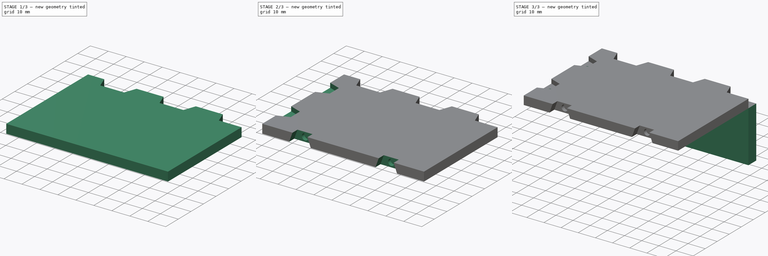
[diagram: build sequence overview — one tinted view per stage of 3, left to right]
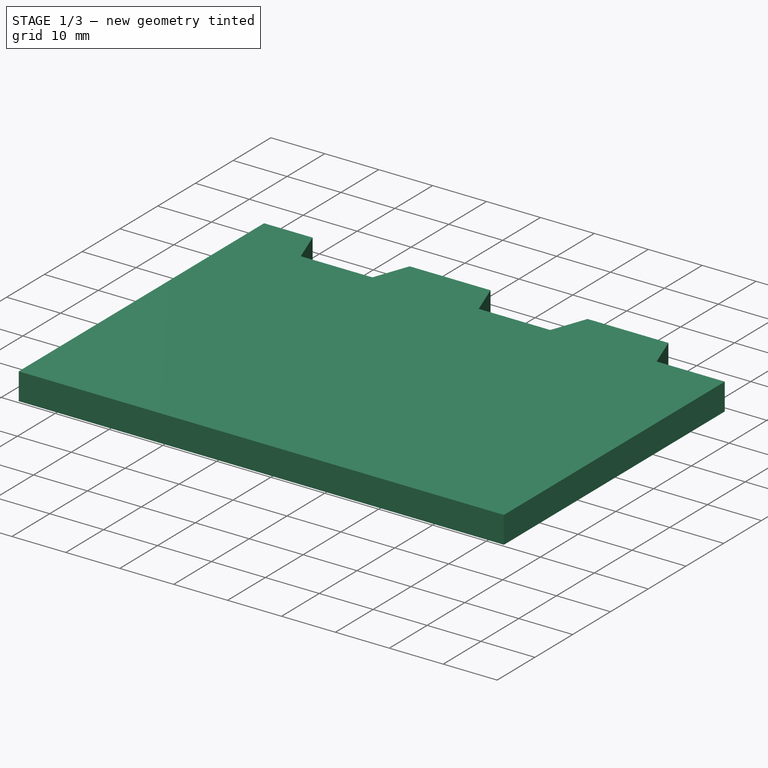
[diagram: stage 1 of 3 — iso view after this stage's code; geometry added in this stage tinted green]
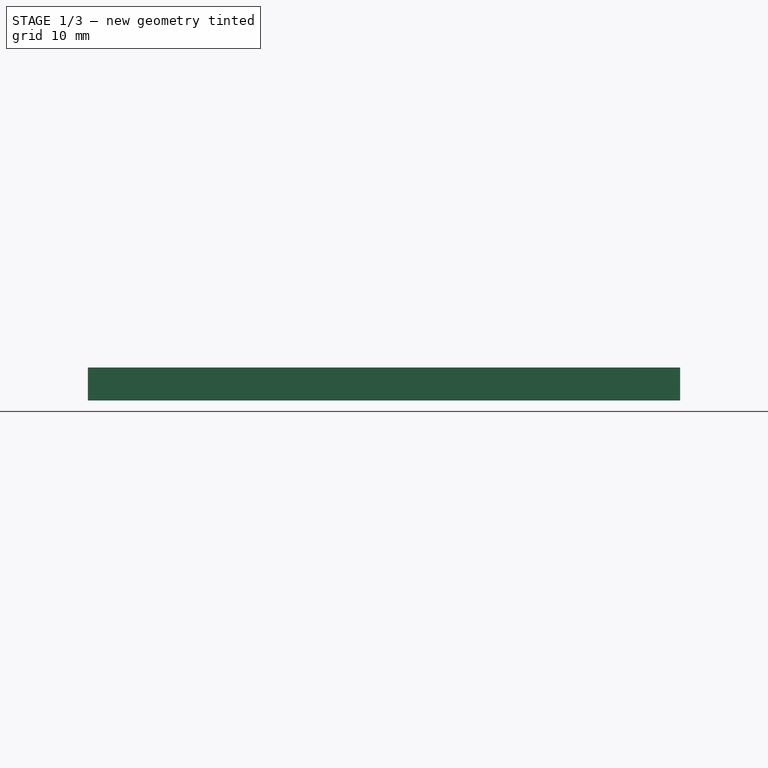
[diagram: stage 1 of 3 — front view after this stage's code; geometry added in this stage tinted green]
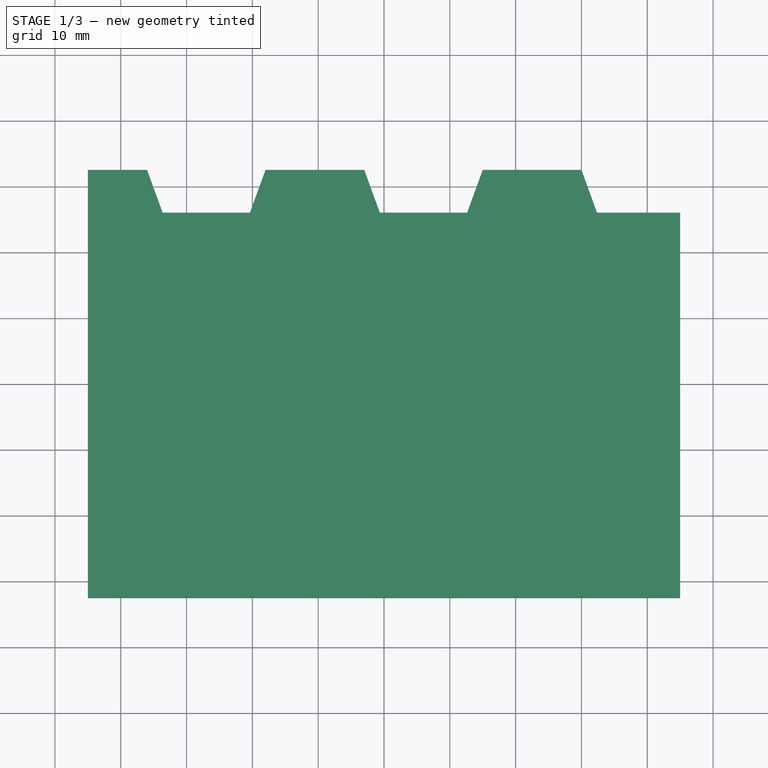
[diagram: stage 1 of 3 — top view after this stage's code; geometry added in this stage tinted green]
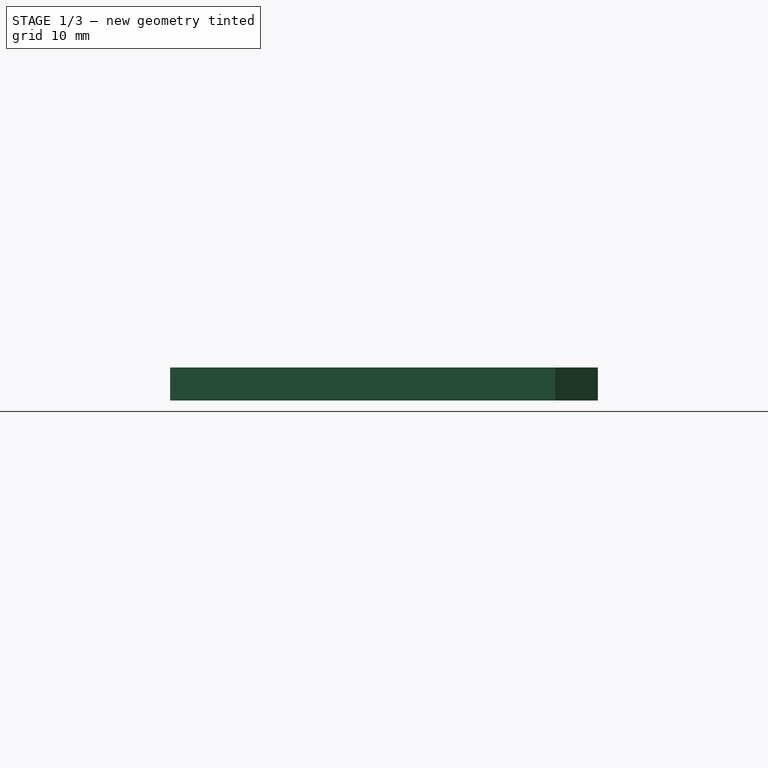
[diagram: stage 1 of 3 — right view after this stage's code; geometry added in this stage tinted green]
FCSTD DOCUMENT  (FreeCAD 0.22R38334 (Git))
Label: PiCASE001
License: All rights reserved
LicenseURL: http://en.wikipedia.org/wiki/All_rights_reserved
objects: Sketcher::SketchObject×7, PartDesign::Pocket×5, PartDesign::Body×3, PartDesign::SubShapeBinder×2, PartDesign::Pad×2, App::Part×1
note: 40 computed .brp shape members not serialized (recipe doc carries the construction recipe); baked Part::Feature solids carry a one-line shape summary decoded from their .brp

FEATURE [Sketcher::SketchObject] Sketch
  AttachmentSupport = -> [XY_Plane001]
  FullyConstrained = true
  MakeInternals = false
  MapMode = 5
  sketch-geometry (5):
    g0: LineSegment StartX=-45 StartY=-32.5 StartZ=0 EndX=45 EndY=-32.5 EndZ=0
    g1: LineSegment StartX=45 StartY=-32.5 StartZ=0 EndX=45 EndY=32.5 EndZ=0
    g2: LineSegment StartX=45 StartY=32.5 StartZ=0 EndX=-45 EndY=32.5 EndZ=0
    g3: LineSegment StartX=-45 StartY=32.5 StartZ=0 EndX=-45 EndY=-32.5 EndZ=0
    g4: GeomPoint X=0 Y=0 Z=0
  constraints (12):
    c: Coincident(g0,g1)
    c: Coincident(g1,g2)
    c: Coincident(g2,g3)
    c: Coincident(g3,g0)
    c: Horizontal(g0)
    c: Horizontal(g2)
    c: Vertical(g1)
    c: Vertical(g3)
    c: Symmetric(g2,g0,g4)
    c: Coincident(g4,g-1)
    c: DistanceX(g2,g2) = 90
    c: DistanceY(g3,g3) = 65
FEATURE [PartDesign::Body] Body
  AllowCompound = false
  Group = -> [Sketch]
  Origin = -> Origin001
FEATURE [PartDesign::SubShapeBinder] Binder
  BindCopyOnChange = 0
  BindMode = 0
  ClaimChildren = false
  Context = -> Part [Body001.Binder.]
  Fuse = false
  MakeFace = true
  OffsetFill = false
  OffsetIntersection = false
  OffsetJoinType = 0
  OffsetOpenResult = false
  PartialLoad = false
  Relative = true
  Support = -> [Body[Sketch.]]
  _Version = 2
FEATURE [PartDesign::Pad] Pad
  Direction = (0,0,1)
  Length = 5
  Length2 = 10
  Profile = -> Binder
  Reversed = true
  Suppressed = false
  Type = 0
FEATURE [PartDesign::Body] Body002
  AllowCompound = false
  Group = -> [Binder001,Sketch002,Pad001]
  Origin = -> Origin003
  Tip = -> Pad001
FEATURE [Sketcher::SketchObject] Sketch004
  AttachmentSupport = -> [Pad]
  ExternalGeometry = -> [Pad]
  FullyConstrained = true
  MakeInternals = false
  MapMode = 5
  sketch-geometry (14):
    g0: LineSegment StartX=45 StartY=32.5 StartZ=0 EndX=45 EndY=26 EndZ=0
    g1: LineSegment StartX=45 StartY=26 StartZ=0 EndX=32.3658 EndY=26 EndZ=0
    g2: LineSegment StartX=32.3658 StartY=26 StartZ=0 EndX=30 EndY=32.5 EndZ=0
    g3: LineSegment StartX=30 StartY=32.5 StartZ=0 EndX=45 EndY=32.5 EndZ=0
    g4: LineSegment StartX=15 StartY=32.5 StartZ=0 EndX=12.6342 EndY=26 EndZ=0
    g5: LineSegment StartX=12.6342 StartY=26 StartZ=0 EndX=-0.634193 EndY=26 EndZ=0
    g6: LineSegment StartX=-0.634193 StartY=26 StartZ=0 EndX=-3 EndY=32.5 EndZ=0
    g7: LineSegment StartX=-3 StartY=32.5 StartZ=0 EndX=15 EndY=32.5 EndZ=0
    g8: LineSegment StartX=-18 StartY=32.5 StartZ=0 EndX=-20.3658 EndY=26 EndZ=0
    g9: LineSegment StartX=-20.3658 StartY=26 StartZ=0 EndX=-33.6342 EndY=26 EndZ=0
    g10: LineSegment StartX=-33.6342 StartY=26 StartZ=0 EndX=-36 EndY=32.5 EndZ=0
    g11: LineSegment StartX=-36 StartY=32.5 StartZ=0 EndX=-18 EndY=32.5 EndZ=0
    g12: LineSegment StartX=-27 StartY=32.5 StartZ=0 EndX=-27 EndY=26 EndZ=0
    g13: LineSegment StartX=6 StartY=32.5 StartZ=0 EndX=6 EndY=26 EndZ=0
  constraints (39):
    c: Coincident(g-4,g0)
    c: PointOnObject(g0,g-4)
    c: Coincident(g0,g1)
    c: Horizontal(g1)
    c: Coincident(g1,g2)
    c: PointOnObject(g2,g-3)
    c: Coincident(g2,g3)
    c: Coincident(g3,g0)
    c: PointOnObject(g4,g-3)
    c: Coincident(g4,g5)
    c: Horizontal(g5)
    c: Coincident(g5,g6)
    c: PointOnObject(g6,g-3)
    c: Coincident(g6,g7)
    c: Coincident(g7,g4)
    c: PointOnObject(g8,g-3)
    c: Coincident(g8,g9)
    c: Coincident(g9,g10)
    c: PointOnObject(g10,g-3)
    c: Coincident(g10,g11)
    c: Coincident(g11,g8)
    c: Symmetric(g11,g11,g12)
    c: Symmetric(g9,g9,g12)
    c: Vertical(g12)
    c: Symmetric(g7,g7,g13)
    c: Symmetric(g5,g5,g13)
    c: Vertical(g13)
    c: Horizontal(g9)
    c: Angle(g9,g10) = 1.91986
    c: Distance(g9,g11) = 6.5
    c: DistanceX(g11,g11) = 18
    c: Equal(g11,g7)
    c: Equal(g12,g13)
    c: Equal(g13,g0)
    c: Angle(g5,g6) = 1.91986
    c: Angle(g1,g2) = 1.91986
    c: DistanceX(g3,g3) = 15
    c: DistanceX(g4,g2) = 15
    c: DistanceX(g8,g6) = 15
FEATURE [PartDesign::Pocket] Pocket
  BaseFeature = -> Pad
  Direction = (0,0,-1)
  Length = 5
  Length2 = 5
  Profile = -> Sketch004
  ReferenceAxis = -> Sketch004 [N_Axis]
  Suppressed = false
  Type = 1
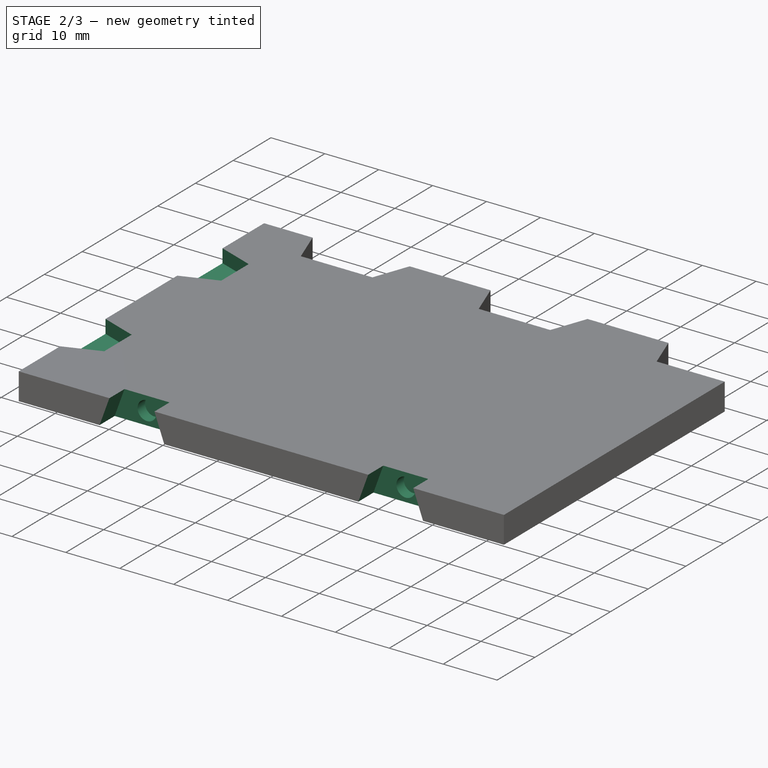
[diagram: stage 2 of 3 — iso view after this stage's code; geometry added in this stage tinted green]
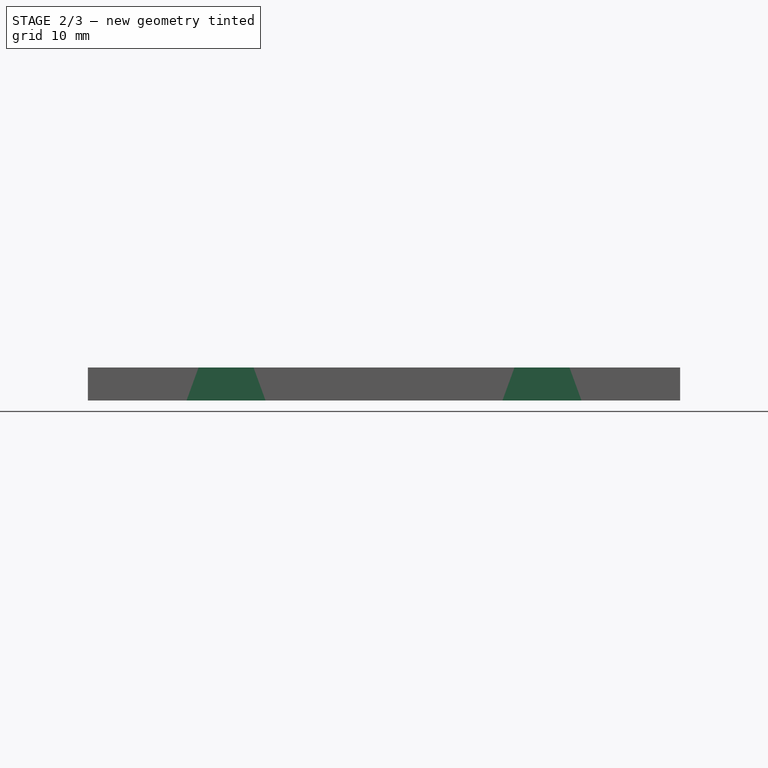
[diagram: stage 2 of 3 — front view after this stage's code; geometry added in this stage tinted green]
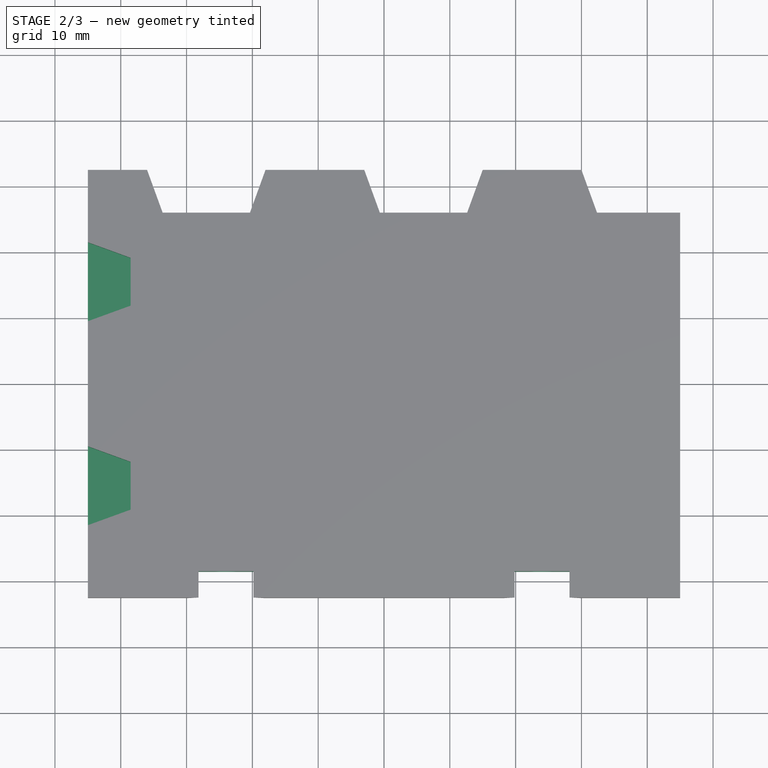
[diagram: stage 2 of 3 — top view after this stage's code; geometry added in this stage tinted green]
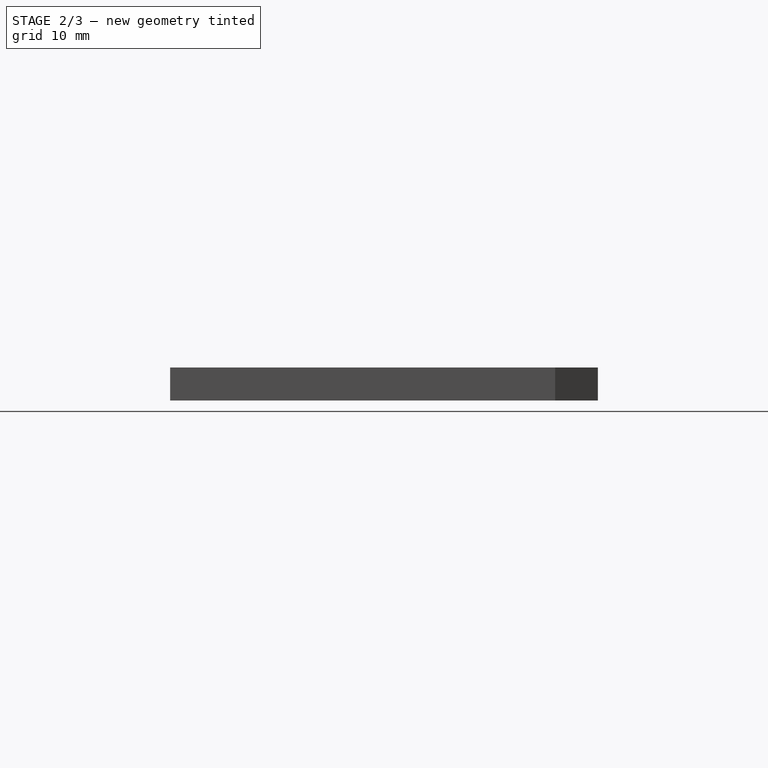
[diagram: stage 2 of 3 — right view after this stage's code; geometry added in this stage tinted green]
FEATURE [Sketcher::SketchObject] Sketch005
  AttachmentSupport = -> [Pad]
  ExternalGeometry = -> [Pad]
  FullyConstrained = true
  MakeInternals = false
  MapMode = 5
  sketch-geometry (10):
    g0: LineSegment StartX=-45 StartY=21.5 StartZ=0 EndX=-38.5 EndY=19.1342 EndZ=0
    g1: LineSegment StartX=-38.5 StartY=19.1342 StartZ=0 EndX=-38.5 EndY=11.8658 EndZ=0
    g2: LineSegment StartX=-38.5 StartY=11.8658 StartZ=0 EndX=-45 EndY=9.5 EndZ=0
    g3: LineSegment StartX=-45 StartY=9.5 StartZ=0 EndX=-45 EndY=21.5 EndZ=0
    g4: LineSegment StartX=-45 StartY=-9.5 StartZ=0 EndX=-38.5 EndY=-11.8658 EndZ=0
    g5: LineSegment StartX=-38.5 StartY=-11.8658 StartZ=0 EndX=-38.5 EndY=-19.1342 EndZ=0
    g6: LineSegment StartX=-38.5 StartY=-19.1342 StartZ=0 EndX=-45 EndY=-21.5 EndZ=0
    g7: LineSegment StartX=-45 StartY=-21.5 StartZ=0 EndX=-45 EndY=-9.5 EndZ=0
    g8: LineSegment StartX=-45 StartY=15.5 StartZ=0 EndX=-38.5 EndY=15.5 EndZ=0
    g9: LineSegment StartX=-38.5 StartY=-15.5 StartZ=0 EndX=-45 EndY=-15.5 EndZ=0
  constraints (27):
    c: Coincident(g0,g1)
    c: Vertical(g1)
    c: Coincident(g1,g2)
    c: Coincident(g2,g3)
    c: Coincident(g3,g0)
    c: Coincident(g4,g5)
    c: Vertical(g5)
    c: Coincident(g5,g6)
    c: Coincident(g6,g7)
    c: Coincident(g7,g4)
    c: Symmetric(g3,g3,g8)
    c: Horizontal(g8)
    c: Symmetric(g1,g1,g8)
    c: Angle(g0,g1) = 1.91986
    c: DistanceY(g3,g3) = 12
    c: Symmetric(g7,g7,g9)
    c: Equal(g9,g8)
    c: Equal(g3,g7)
    c: Angle(g4,g5) = 1.91986
    c: Horizontal(g9)
    c: Symmetric(g5,g5,g9)
    c: DistanceX(g8,g8) = 6.5
    c: PointOnObject(g4,g-4)
    c: PointOnObject(g6,g-4)
    c: PointOnObject(g2,g-4)
    c: DistanceY(g8,g-4) = 17
    c: Symmetric(g8,g9,g-1)
FEATURE [PartDesign::Pocket] Pocket001
  BaseFeature = -> Pocket
  Direction = (0,0,-1)
  Length = 2.5
  Length2 = 5
  Profile = -> Sketch005
  ReferenceAxis = -> Sketch005 [N_Axis]
  Suppressed = false
  Type = 0
FEATURE [Sketcher::SketchObject] Sketch006
  AttachmentSupport = -> [Pad]
  ExternalGeometry = -> [Pad]
  FullyConstrained = true
  MakeInternals = false
  MapMode = 5
  Placement = pos=(0,-32.5,0) rot=(1,0,0;1.5708rad)
  sketch-geometry (10):
    g0: LineSegment StartX=-30 StartY=-5 StartZ=0 EndX=-28.1801 EndY=0 EndZ=0
    g1: LineSegment StartX=-28.1801 StartY=0 StartZ=0 EndX=-19.8199 EndY=0 EndZ=0
    g2: LineSegment StartX=-19.8199 StartY=0 StartZ=0 EndX=-18 EndY=-5 EndZ=0
    g3: LineSegment StartX=-18 StartY=-5 StartZ=0 EndX=-30 EndY=-5 EndZ=0
    g4: LineSegment StartX=-24 StartY=0 StartZ=0 EndX=-24 EndY=-5 EndZ=0
    g5: LineSegment StartX=30 StartY=-5 StartZ=0 EndX=28.1801 EndY=0 EndZ=0
    g6: LineSegment StartX=28.1801 StartY=0 StartZ=0 EndX=19.8199 EndY=0 EndZ=0
    g7: LineSegment StartX=19.8199 StartY=0 StartZ=0 EndX=18 EndY=-5 EndZ=0
    g8: LineSegment StartX=18 StartY=-5 StartZ=0 EndX=30 EndY=-5 EndZ=0
    g9: LineSegment StartX=24 StartY=0 StartZ=0 EndX=24 EndY=-5 EndZ=0
  constraints (28):
    c: PointOnObject(g0,g-4)
    c: PointOnObject(g0,g-3)
    c: Coincident(g0,g1)
    c: PointOnObject(g1,g-3)
    c: Coincident(g1,g2)
    c: PointOnObject(g2,g-4)
    c: Coincident(g2,g3)
    c: Coincident(g3,g0)
    c: Angle(g0,g1) = 1.91986
    c: Symmetric(g1,g1,g4)
    c: Vertical(g4)
    c: Symmetric(g3,g3,g4)
    c: DistanceX(g3,g3) = 12
    c: DistanceX(g-4,g0) = 15
    c: Coincident(g5,g6)
    c: Coincident(g6,g7)
    c: Coincident(g7,g8)
    c: Coincident(g8,g5)
    c: Angle(g5,g6) = -1.91986
    c: Symmetric(g6,g6,g9)
    c: Vertical(g9)
    c: Symmetric(g8,g8,g9)
    c: DistanceX(g8,g8) = 12
    c: DistanceX(g5,g-4) = 15
    c: DistanceY(g9,g9) = 5
    c: PointOnObject(g5,g-3)
    c: PointOnObject(g5,g-4)
    c: PointOnObject(g7,g-4)
FEATURE [PartDesign::Pocket] Pocket002
  BaseFeature = -> Pocket001
  Direction = (0,1,-2e-16)
  Length = 4
  Length2 = 5
  Profile = -> Sketch006
  ReferenceAxis = -> Sketch006 [N_Axis]
  Suppressed = false
  Type = 0
FEATURE [Sketcher::SketchObject] Sketch007
  AttachmentSupport = -> [Pad]
  ExternalGeometry = -> [Pad]
  FullyConstrained = true
  MakeInternals = false
  MapMode = 5
  Placement = pos=(0,-32.5,0) rot=(1,0,0;1.5708rad)
  sketch-geometry (3):
    g0: Circle CenterX=-24 CenterY=-2.5 CenterZ=0 NormalX=0 NormalY=0 NormalZ=1 AngleXU=0 Radius=1.75
    g1: Circle CenterX=24 CenterY=-2.5 CenterZ=0 NormalX=0 NormalY=0 NormalZ=1 AngleXU=0 Radius=1.75
    g2: LineSegment StartX=-24 StartY=0 StartZ=0 EndX=-24 EndY=-5 EndZ=0
  constraints (8):
    c: Distance(g0,g-3) = 21
    c: Diameter(g0) = 3.5
    c: PointOnObject(g2,g-1)
    c: PointOnObject(g2,g-4)
    c: Vertical(g2)
    c: Symmetric(g2,g2,g0)
    c: Symmetric(g1,g0,g-2)
    c: Equal(g0,g1)
FEATURE [PartDesign::Pocket] Pocket003
  BaseFeature = -> Pocket002
  Direction = (0,1,-2e-16)
  Length = 6
  Length2 = 5
  Profile = -> Sketch007
  ReferenceAxis = -> Sketch007 [N_Axis]
  Suppressed = false
  Type = 0
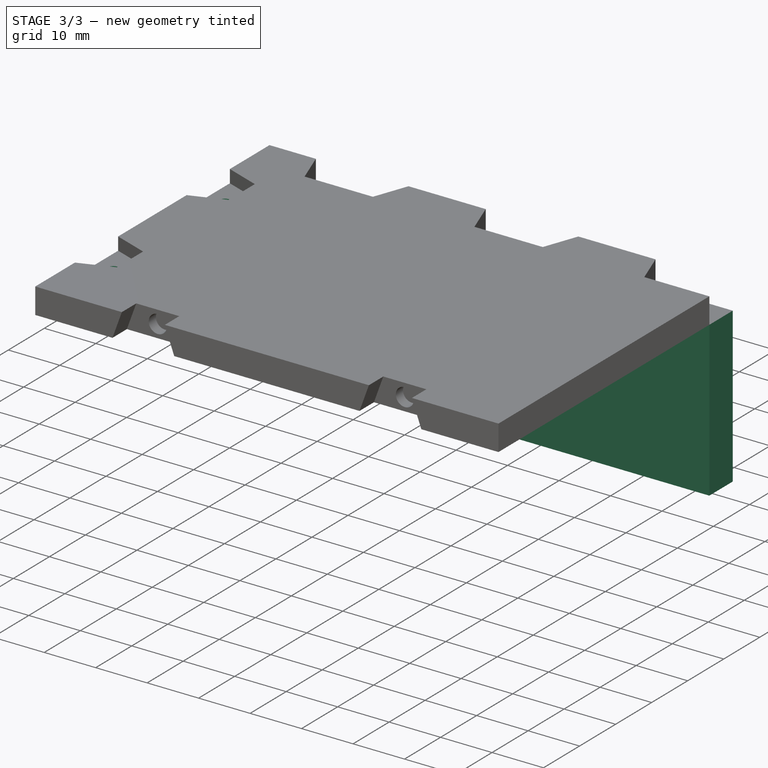
[diagram: stage 3 of 3 — iso view after this stage's code; geometry added in this stage tinted green]
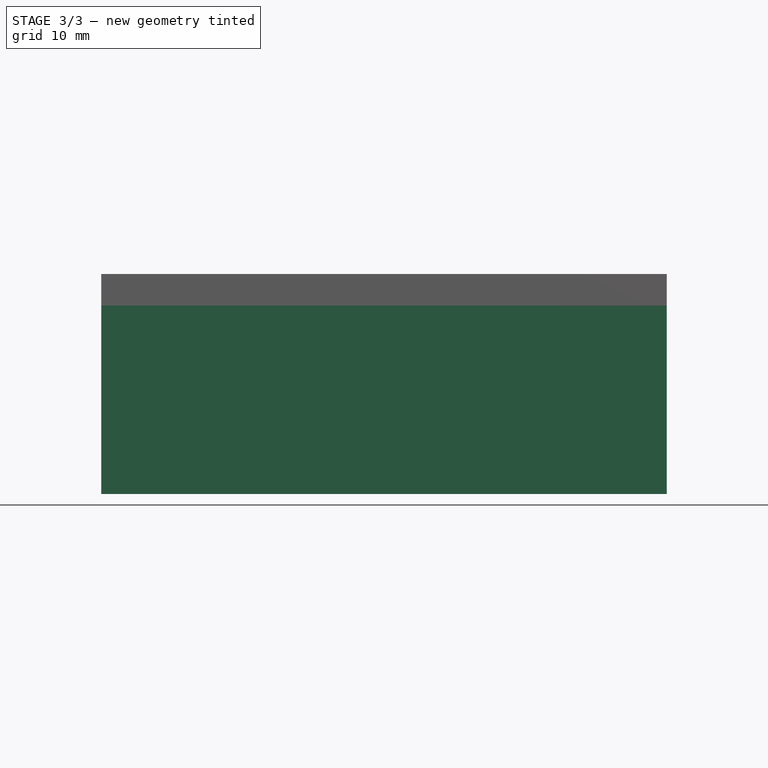
[diagram: stage 3 of 3 — front view after this stage's code; geometry added in this stage tinted green]
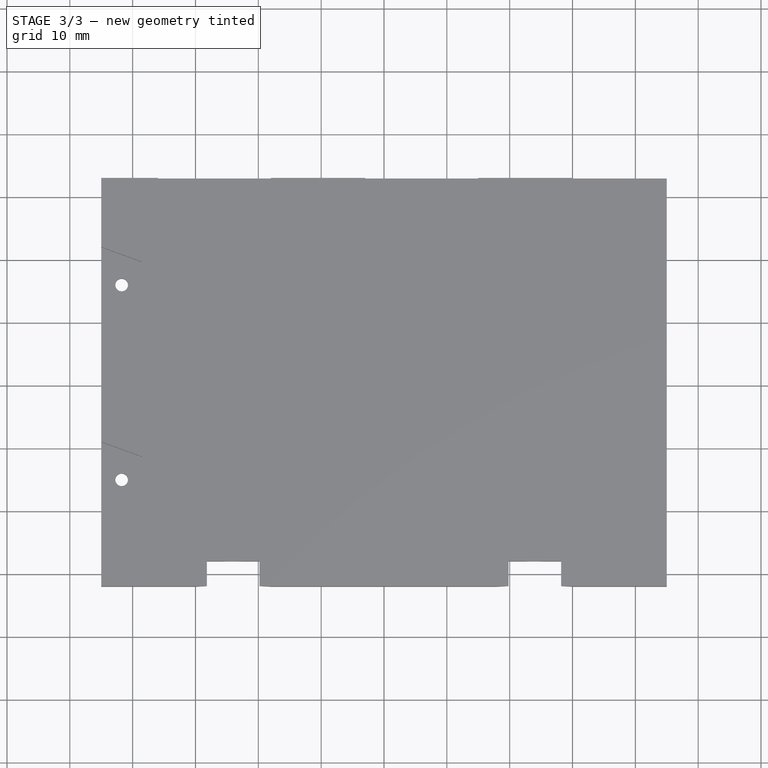
[diagram: stage 3 of 3 — top view after this stage's code; geometry added in this stage tinted green]
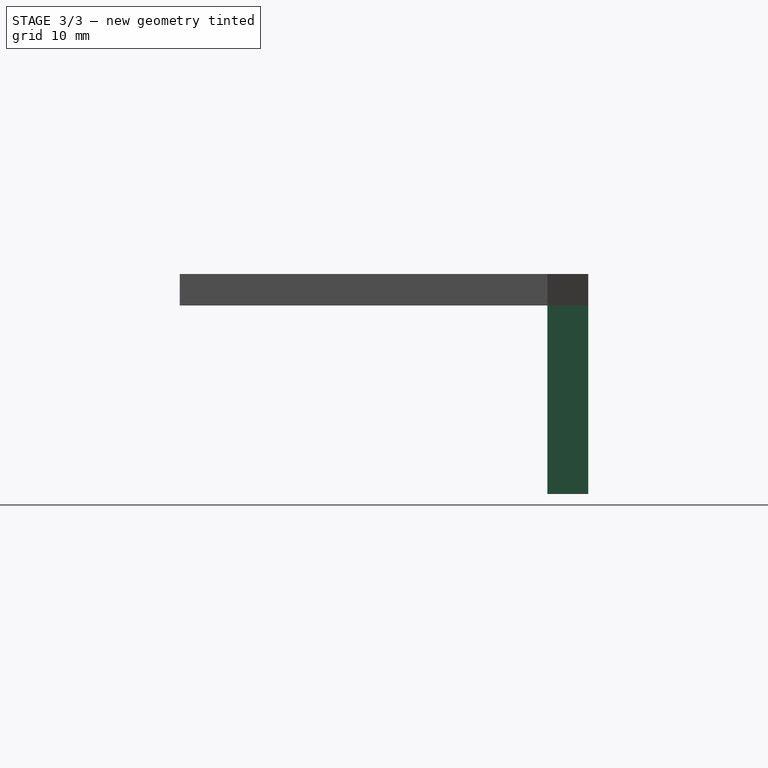
[diagram: stage 3 of 3 — right view after this stage's code; geometry added in this stage tinted green]
FEATURE [PartDesign::SubShapeBinder] Binder001
  BindCopyOnChange = 0
  BindMode = 0
  ClaimChildren = false
  Context = -> Part [Body002.Binder001.]
  Fuse = false
  MakeFace = true
  OffsetFill = false
  OffsetIntersection = false
  OffsetJoinType = 0
  OffsetOpenResult = false
  PartialLoad = false
  Placement = pos=(0,0,-5) rot=(0,0,1;0rad)
  Relative = true
  Support = -> [Body[Sketch.]]
  _Version = 2
FEATURE [Sketcher::SketchObject] Sketch002
  AttachmentSupport = -> [Binder001]
  ExternalGeometry = -> [Binder001]
  FullyConstrained = true
  MakeInternals = false
  MapMode = 5
  Placement = pos=(0,0,-5) rot=(0,0,1;0rad)
  sketch-geometry (4):
    g0: LineSegment StartX=-45 StartY=32.5 StartZ=0 EndX=-45 EndY=26 EndZ=0
    g1: LineSegment StartX=-45 StartY=26 StartZ=0 EndX=45 EndY=26 EndZ=0
    g2: LineSegment StartX=45 StartY=26 StartZ=0 EndX=45 EndY=32.5 EndZ=0
    g3: LineSegment StartX=45 StartY=32.5 StartZ=0 EndX=-45 EndY=32.5 EndZ=0
  constraints (10):
    c: Coincident(g0,g1)
    c: Coincident(g1,g2)
    c: Coincident(g2,g3)
    c: Coincident(g3,g0)
    c: Vertical(g0)
    c: Vertical(g2)
    c: Horizontal(g1)
    c: Coincident(g0,g-4)
    c: Coincident(g2,g-4)
    c: DistanceY(g0,g0) = 6.5
FEATURE [PartDesign::Pad] Pad001
  Direction = (0,0,1)
  Length = 30
  Length2 = 10
  Placement = pos=(0,0,-5) rot=(0,0,1;0rad)
  Profile = -> Sketch002
  ReferenceAxis = -> Sketch002 [N_Axis]
  Reversed = true
  Suppressed = false
  Type = 0
FEATURE [Sketcher::SketchObject] Sketch008
  AttachmentSupport = -> [Pad]
  ExternalGeometry = -> [Pad]
  FullyConstrained = true
  MakeInternals = false
  MapMode = 5
  sketch-geometry (3):
    g0: Circle CenterX=-41.75 CenterY=15.5 CenterZ=0 NormalX=0 NormalY=0 NormalZ=1 AngleXU=0 Radius=1
    g1: Circle CenterX=-41.75 CenterY=-15.5 CenterZ=0 NormalX=0 NormalY=0 NormalZ=1 AngleXU=0 Radius=1
    g2: LineSegment StartX=-45 StartY=15.5 StartZ=0 EndX=-38.5 EndY=15.5 EndZ=0
  constraints (8):
    c: DistanceY(g0,g-4) = 17
    c: Diameter(g0) = 2
    c: Equal(g0,g1)
    c: Symmetric(g0,g1,g-1)
    c: PointOnObject(g2,g-3)
    c: Horizontal(g2)
    c: DistanceX(g2,g2) = 6.5
    c: Symmetric(g2,g2,g0)
FEATURE [PartDesign::Pocket] Pocket004
  BaseFeature = -> Pocket003
  Direction = (0,0,-1)
  Length = 5
  Length2 = 5
  Profile = -> Sketch008
  ReferenceAxis = -> Sketch008 [N_Axis]
  Suppressed = false
  Type = 1
FEATURE [PartDesign::Body] Body001
  AllowCompound = false
  Group = -> [Binder,Pad,Sketch004,Pocket,Sketch005,Pocket001,Sketch006,Pocket002,Sketch007,Pocket003,Sketch008,Pocket004]
  Origin = -> Origin002
  Tip = -> Pocket004
FEATURE [App::Part] Part
  Group = -> [Body,Body001,Body002]
  Origin = -> Origin
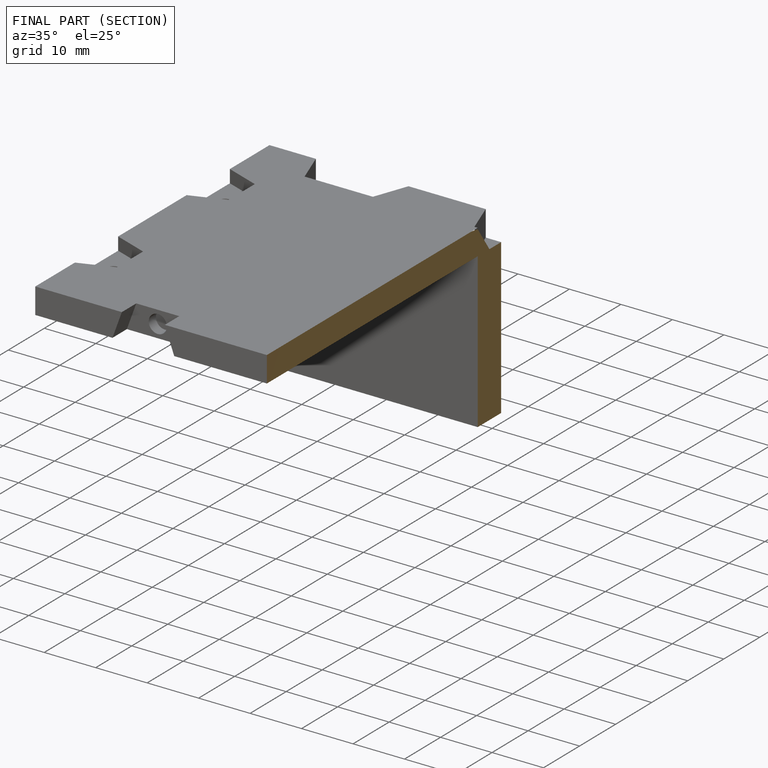
[diagram: finished part — half-section view (interior)]
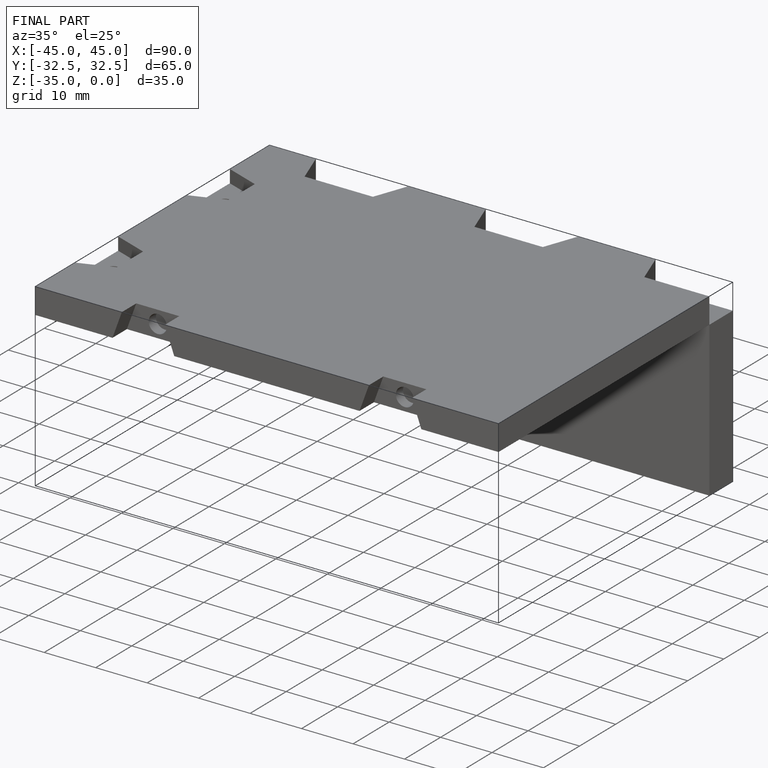
[diagram: finished part — iso view with bounding-box wireframe]
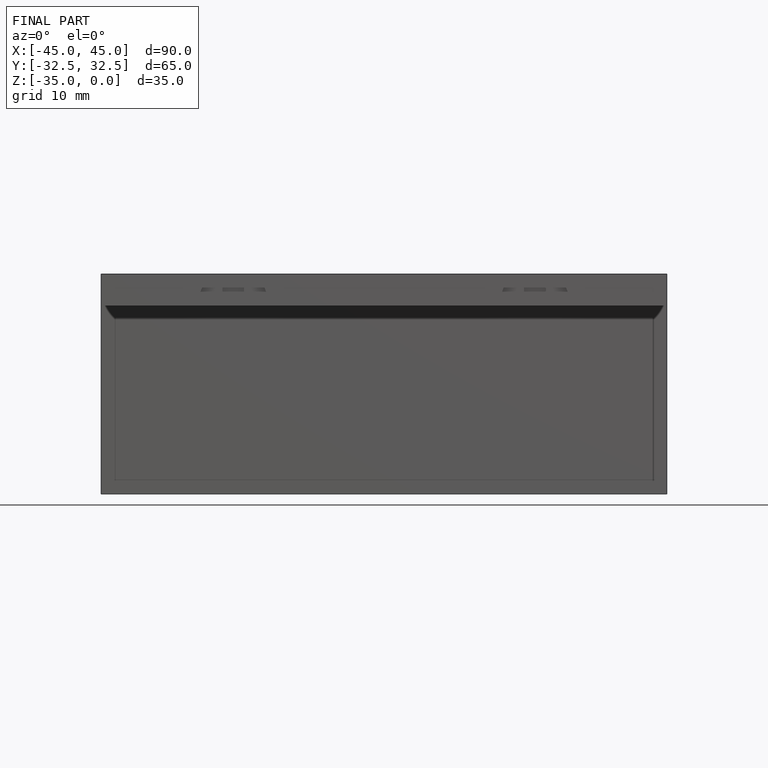
[diagram: finished part — front view with bounding-box wireframe]
